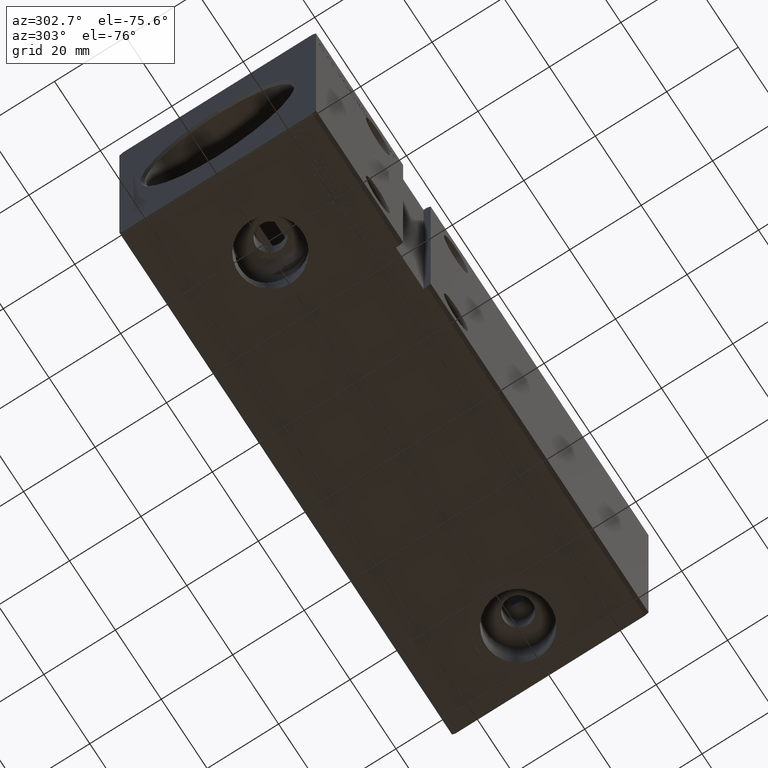
[diagram: clean part render]
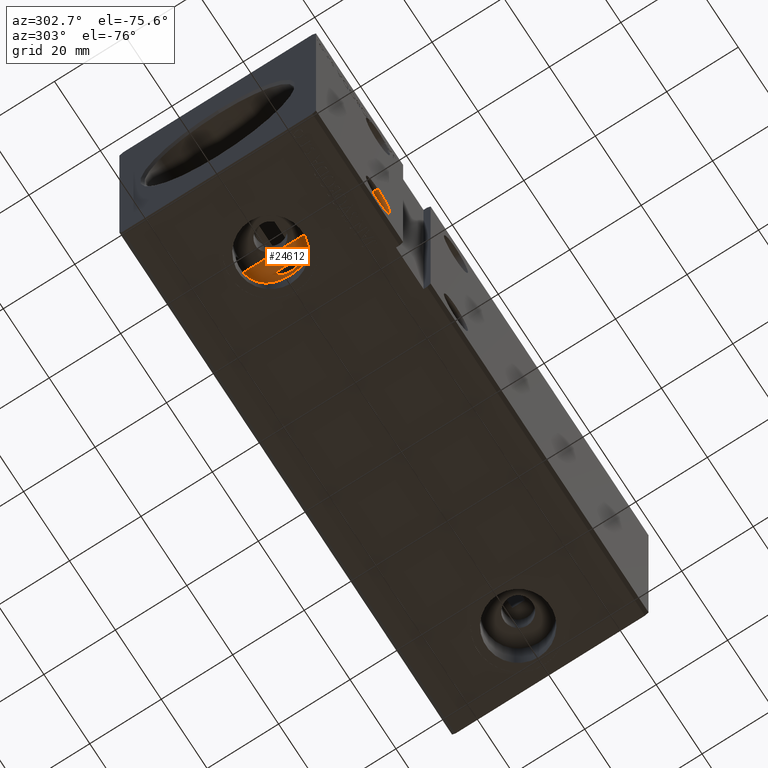
[diagram: same view with one face highlighted and labeled with its STEP entity id]
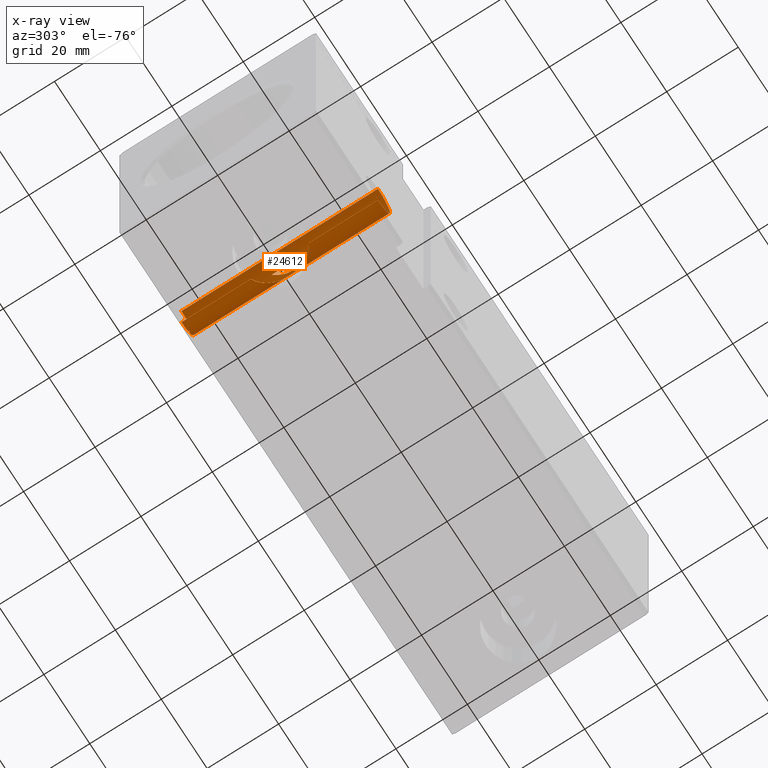
[diagram: x-ray of the same camera — body ghosted, the highlighted face saturated]
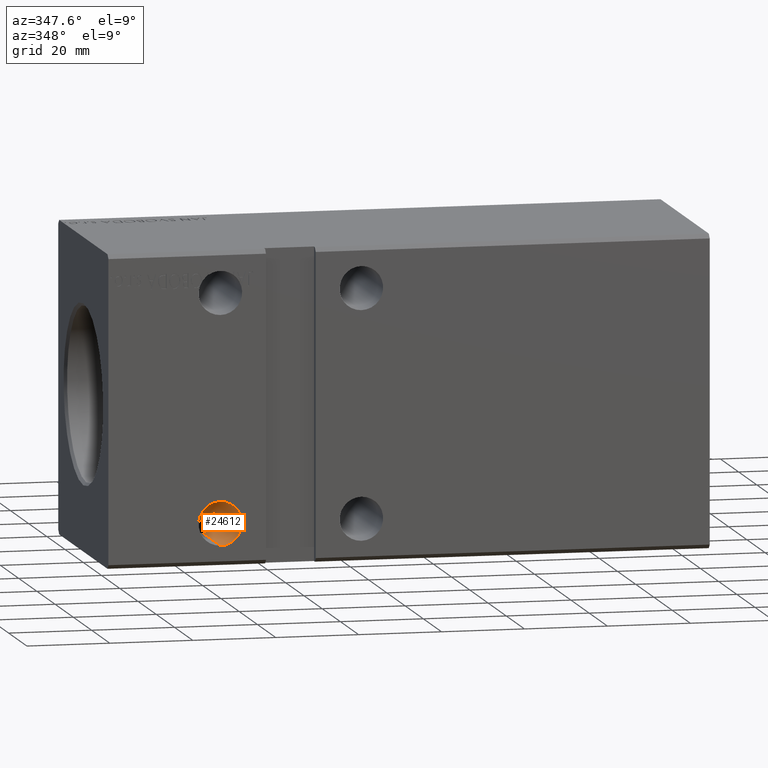
[diagram: same view with one face highlighted and labeled with its STEP entity id]
A machine part, auxiliary view. The second image highlights one B-rep face of the part: STEP entity #24612.
The next image is the same camera in x-ray: the body ghosted, the highlighted face saturated — about 0% of this face is hidden behind the body in this view.
A second angle (auxiliary view) of the same face is appended — the face is thin or edge-on in the first view.
In plain terms, the highlighted cylindrical surface (edge-blend (fillet) strip) has radius 5.25 mm, axis along (-0, -1, -0).
Its self-contained STEP definition (entity closure, byte-faithful):
#240 = AXIS2_PLACEMENT_3D ( 'NONE', #9125, #30287, #17522 ) ;
#247 = EDGE_CURVE ( 'NONE', #35630, #35188, #10014, .T. ) ;
#251 = EDGE_CURVE ( 'NONE', #6107, #32187, #13606, .T. ) ;
#565 = CARTESIAN_POINT ( 'NONE',  ( 30.01923076923075584, 27.30000000000000782, -31.79496746927497242 ) ) ;
#637 = DIRECTION ( 'NONE',  ( -0.000000000000000000, -1.000000000000000000, -5.507058653894626469E-17 ) ) ;
#680 = VECTOR ( 'NONE', #14255, 1000.000000000000000 ) ;
#697 = DIRECTION ( 'NONE',  ( 0.000000000000000000, 0.000000000000000000, 1.000000000000000000 ) ) ;
#782 = CARTESIAN_POINT ( 'NONE',  ( 30.01923076923075584, 27.50000000000003197, -31.79496746927497242 ) ) ;
#799 = VERTEX_POINT ( 'NONE', #565 ) ;
#971 = LINE ( 'NONE', #782, #20971 ) ;
#1026 = CARTESIAN_POINT ( 'NONE',  ( 31.74987164981405741, -2.116821594032598952, -29.73885290446572682 ) ) ;
#1120 = CARTESIAN_POINT ( 'NONE',  ( 30.92799628090085662, -4.278317451282456219, -24.00476713625127800 ) ) ;
#1124 = DIRECTION ( 'NONE',  ( 5.947623346206198682E-15, 0.000000000000000000, -1.000000000000000000 ) ) ;
#1228 = CARTESIAN_POINT ( 'NONE',  ( 28.33257449674679762, -7.253408603800984622, -32.58142202289079847 ) ) ;
#1319 = CARTESIAN_POINT ( 'NONE',  ( 31.87355452181064308, -1.517798595218639468, -25.54596872197477353 ) ) ;
#1452 = CARTESIAN_POINT ( 'NONE',  ( 27.00000000000000355, 27.50000000000003197, -22.25000000000000711 ) ) ;
#1554 = B_SPLINE_CURVE_WITH_KNOTS ( 'NONE', 3,
 ( #28233, #7099, #28436, #25632, #10083, #31436, #37812, #22842, #7699, #13274, #10485, #3918, #13870, #37412, #4524, #22637, #34826, #13672, #19655, #31840, #4116, #16672 ),
 .UNSPECIFIED., .F., .F.,
 ( 4, 2, 2, 2, 2, 2, 2, 2, 2, 2, 4 ),
 ( 0.01243331292495309000, 0.01377342179390552562, 0.01511353066285796125, 0.01578358509733417472, 0.01645363953181038993, 0.01779374840076281689, 0.01913385726971524731, 0.02047396613866767079, 0.02181407500762009427, 0.02248412944209630254, 0.02315418387657251428 ),
 .UNSPECIFIED. ) ;
#1886 = EDGE_CURVE ( 'NONE', #16867, #35630, #8544, .T. ) ;
#1905 = LINE ( 'NONE', #20236, #680 ) ;
#1909 = CARTESIAN_POINT ( 'NONE',  ( 30.28846153846152944, 27.50000000000003197, -31.59249565791574810 ) ) ;
#1987 = CARTESIAN_POINT ( 'NONE',  ( 31.64571472946482089, 27.50000000000003197, -29.94537004406973324 ) ) ;
#2154 = EDGE_CURVE ( 'NONE', #27629, #4449, #31618, .T. ) ;
#2451 = CARTESIAN_POINT ( 'NONE',  ( 32.00039999823637515, 0.2095946376151832102, -25.90046828368459941 ) ) ;
#2799 = LINE ( 'NONE', #14171, #22150 ) ;
#2964 = FACE_OUTER_BOUND ( 'NONE', #20361, .T. ) ;
#3678 = CARTESIAN_POINT ( 'NONE',  ( 27.00000000000000355, -27.50000000000000355, -32.75000000000000000 ) ) ;
#3823 = CARTESIAN_POINT ( 'NONE',  ( 27.00000000000000355, 27.50000000000003197, -32.75000000000000000 ) ) ;
#3918 = CARTESIAN_POINT ( 'NONE',  ( 30.90760833008661734, 4.315806309705124910, -31.01800618666971232 ) ) ;
#4048 = CARTESIAN_POINT ( 'NONE',  ( 31.64571472946482089, 27.50000000000003197, -29.94537004406973324 ) ) ;
#4116 = CARTESIAN_POINT ( 'NONE',  ( 31.99999999999999289, 0.2232511873690092297, -29.10078105935823700 ) ) ;
#4218 = CIRCLE ( 'NONE', #20148, 5.249999999999997335 ) ;
#4241 = CARTESIAN_POINT ( 'NONE',  ( 27.00000000000000355, 27.50000000000003197, -27.50000000000000355 ) ) ;
#4312 = CARTESIAN_POINT ( 'NONE',  ( 31.96489072438012968, -0.8974764669322575772, -25.78493506093466792 ) ) ;
#4353 = ORIENTED_EDGE ( 'NONE', *, *, #18526, .T. ) ;
#4427 = CARTESIAN_POINT ( 'NONE',  ( 29.78599849538879596, -5.973448801833280974, -32.00209708759411598 ) ) ;
#4449 = VERTEX_POINT ( 'NONE', #17845 ) ;
#4500 = CARTESIAN_POINT ( 'NONE',  ( 27.00000000000000355, -27.50000000000000355, -22.25000000000001066 ) ) ;
#4524 = CARTESIAN_POINT ( 'NONE',  ( 31.53670622947072388, 2.877837303814040126, -30.15267525249126379 ) ) ;
#4712 = CARTESIAN_POINT ( 'NONE',  ( 31.10472750638166772, -3.932202576330293464, -24.21633373910735543 ) ) ;
#4831 = ORIENTED_EDGE ( 'NONE', *, *, #1886, .F. ) ;
#4924 = EDGE_CURVE ( 'NONE', #39394, #12598, #31146, .T. ) ;
#4991 = EDGE_CURVE ( 'NONE', #32304, #39394, #14640, .T. ) ;
#5054 = CARTESIAN_POINT ( 'NONE',  ( 31.64571472946482089, 27.30000000000000782, -29.94537004406974035 ) ) ;
#5360 = ORIENTED_EDGE ( 'NONE', *, *, #13070, .F. ) ;
#5370 = CYLINDRICAL_SURFACE ( 'NONE', #240, 5.249999999999997335 ) ;
#5773 = DIRECTION ( 'NONE',  ( 0.000000000000000000, 0.000000000000000000, 1.000000000000000000 ) ) ;
#5827 = CIRCLE ( 'NONE', #22368, 5.249999999999997335 ) ;
#6019 = VECTOR ( 'NONE', #31368, 1000.000000000000000 ) ;
#6107 = VERTEX_POINT ( 'NONE', #1987 ) ;
#6743 = AXIS2_PLACEMENT_3D ( 'NONE', #4241, #34552, #10807 ) ;
#7099 = CARTESIAN_POINT ( 'NONE',  ( 27.40286168988945192, 7.862382377172155934, -32.75000000000000711 ) ) ;
#7106 = ORIENTED_EDGE ( 'NONE', *, *, #29937, .T. ) ;
#7206 = CARTESIAN_POINT ( 'NONE',  ( 30.91192576798002278, -4.308336981457539849, -31.01349467404923388 ) ) ;
#7293 = CARTESIAN_POINT ( 'NONE',  ( 31.93750247906445594, 1.079324552133368753, -25.71375318226922957 ) ) ;
#7311 = EDGE_CURVE ( 'NONE', #16867, #14042, #4218, .T. ) ;
#7694 = CARTESIAN_POINT ( 'NONE',  ( 31.70311647027032720, -2.300813308643572253, -25.16405310687168040 ) ) ;
#7699 = CARTESIAN_POINT ( 'NONE',  ( 29.88352700151274277, 5.801654747051010474, -31.89004079053835028 ) ) ;
#8378 = EDGE_CURVE ( 'NONE', #17520, #28210, #20043, .T. ) ;
#8544 = LINE ( 'NONE', #14728, #36048 ) ;
#8572 = CARTESIAN_POINT ( 'NONE',  ( 27.00000000000000355, 27.50000000000003197, -22.25000000000000711 ) ) ;
#8738 = DIRECTION ( 'NONE',  ( -0.000000000000000000, -1.000000000000000000, -5.507058653894626469E-17 ) ) ;
#8789 = ORIENTED_EDGE ( 'NONE', *, *, #37233, .T. ) ;
#8960 = AXIS2_PLACEMENT_3D ( 'NONE', #28318, #10170, #22320 ) ;
#9125 = CARTESIAN_POINT ( 'NONE',  ( 27.00000000000000355, 27.50000000000003197, -27.50000000000000355 ) ) ;
#9938 = CARTESIAN_POINT ( 'NONE',  ( 27.00000000000000711, -8.062257748298547355, -32.75000000000000000 ) ) ;
#9990 = CARTESIAN_POINT ( 'NONE',  ( 31.83639655614860331, -1.720256798175024082, -29.54524115184878852 ) ) ;
#10014 = LINE ( 'NONE', #1452, #6019 ) ;
#10083 = CARTESIAN_POINT ( 'NONE',  ( 28.85066787504610630, 6.851965380374288372, -32.42468671697207583 ) ) ;
#10170 = DIRECTION ( 'NONE',  ( -0.000000000000000000, 1.000000000000000000, 5.507058653894625853E-17 ) ) ;
#10193 = CARTESIAN_POINT ( 'NONE',  ( 31.09177392262524364, -3.959209887226275981, -30.80006806984447820 ) ) ;
#10286 = CARTESIAN_POINT ( 'NONE',  ( 31.84764770461744021, 1.701381292791838362, -25.47731726897154303 ) ) ;
#10485 = CARTESIAN_POINT ( 'NONE',  ( 30.49849917197173710, 4.992891323960996885, -31.42508266594752797 ) ) ;
#10529 = VECTOR ( 'NONE', #21171, 1000.000000000000000 ) ;
#10791 = CARTESIAN_POINT ( 'NONE',  ( 30.28846153846152944, 27.30000000000000782, -31.59249565791574810 ) ) ;
#10807 = DIRECTION ( 'NONE',  ( 0.000000000000000000, 0.000000000000000000, 1.000000000000000000 ) ) ;
#10906 = CARTESIAN_POINT ( 'NONE',  ( 30.01923076923075584, 27.50000000000003197, -31.79496746927497242 ) ) ;
#11559 = DIRECTION ( 'NONE',  ( -0.000000000000000000, 1.000000000000000000, 5.507058653894625853E-17 ) ) ;
#11618 = CARTESIAN_POINT ( 'NONE',  ( 31.83652987904732967, -1.719234942425159174, -25.45515744600379193 ) ) ;
#11808 = VECTOR ( 'NONE', #637, 1000.000000000000000 ) ;
#12004 = CARTESIAN_POINT ( 'NONE',  ( 30.72458051329272166, 27.50000000000003197, -23.79999999999998650 ) ) ;
#12356 = ORIENTED_EDGE ( 'NONE', *, *, #21702, .T. ) ;
#12598 = VERTEX_POINT ( 'NONE', #3678 ) ;
#12983 = CARTESIAN_POINT ( 'NONE',  ( 31.99137717627127131, -0.4510888903456313770, -29.12827605150356192 ) ) ;
#13070 = EDGE_CURVE ( 'NONE', #30395, #14042, #2799, .T. ) ;
#13183 = CARTESIAN_POINT ( 'NONE',  ( 31.40397459461826557, -3.244280992608217229, -30.37020397697443741 ) ) ;
#13213 = CARTESIAN_POINT ( 'NONE',  ( 30.72458051329272166, 4.618533955018443216, -23.79999999999998650 ) ) ;
#13274 = CARTESIAN_POINT ( 'NONE',  ( 30.26957916853698549, 5.321821666545355711, -31.61959907088585098 ) ) ;
#13391 = CARTESIAN_POINT ( 'NONE',  ( 32.01284735985530716, 27.50000000000003197, -29.06008376274855465 ) ) ;
#13474 = CARTESIAN_POINT ( 'NONE',  ( 30.72458051329272166, 4.618533955018443216, -23.79999999999998650 ) ) ;
#13606 = LINE ( 'NONE', #4048, #36565 ) ;
#13672 = CARTESIAN_POINT ( 'NONE',  ( 31.93511672898888420, 1.098857728786704513, -29.29286719930673755 ) ) ;
#13870 = CARTESIAN_POINT ( 'NONE',  ( 31.08772911232518865, 3.967733412523517966, -30.80523690190171493 ) ) ;
#14042 = VERTEX_POINT ( 'NONE', #13391 ) ;
#14171 = CARTESIAN_POINT ( 'NONE',  ( 32.01284735985530716, 27.50000000000003197, -29.06008376274855110 ) ) ;
#14255 = DIRECTION ( 'NONE',  ( -0.000000000000000000, -1.000000000000000000, -5.507058653894626469E-17 ) ) ;
#14588 = CARTESIAN_POINT ( 'NONE',  ( 27.00000000000000711, -2.694655668400267668E-15, -22.25000000000001066 ) ) ;
#14640 = B_SPLINE_CURVE_WITH_KNOTS ( 'NONE', 3,
 ( #28340, #22343, #12983, #25135, #37320, #18757, #9990, #1026, #19564, #22544, #13183, #10193, #7206, #19358, #4427, #31542, #28544, #34726, #1228, #31745, #16578, #28748, #22753, #19767 ),
 .UNSPECIFIED., .F., .F.,
 ( 4, 2, 2, 2, 2, 2, 2, 2, 2, 2, 2, 4 ),
 ( 0.02315418387657251428, 0.02382633822408273053, 0.02449849257159295024, 0.02517064691910316648, 0.02584280126661338273, 0.02718710996163380827, 0.02853141865665422688, 0.03122003604669507104, 0.03189219039420528035, 0.03256434474171548965, 0.03323649908922569896, 0.03390865343673590132 ),
 .UNSPECIFIED. ) ;
#14728 = CARTESIAN_POINT ( 'NONE',  ( 27.00000000000000355, 27.50000000000003197, -22.25000000000000711 ) ) ;
#14950 = DIRECTION ( 'NONE',  ( 0.000000000000000000, 1.000000000000000000, 5.507058653894626469E-17 ) ) ;
#15844 = VERTEX_POINT ( 'NONE', #30931 ) ;
#16578 = CARTESIAN_POINT ( 'NONE',  ( 27.78598026696628764, -7.625266879565527844, -32.69446019901156575 ) ) ;
#16672 = CARTESIAN_POINT ( 'NONE',  ( 32.00000000000000000, -4.386165393870320495E-16, -29.10078105935821924 ) ) ;
#16867 = VERTEX_POINT ( 'NONE', #8572 ) ;
#16896 = ORIENTED_EDGE ( 'NONE', *, *, #7311, .T. ) ;
#17062 = EDGE_CURVE ( 'NONE', #27629, #799, #971, .T. ) ;
#17373 = ORIENTED_EDGE ( 'NONE', *, *, #17062, .F. ) ;
#17520 = VERTEX_POINT ( 'NONE', #10791 ) ;
#17522 = DIRECTION ( 'NONE',  ( 0.000000000000000000, 0.000000000000000000, -1.000000000000000000 ) ) ;
#17721 = VERTEX_POINT ( 'NONE', #31989 ) ;
#17845 = CARTESIAN_POINT ( 'NONE',  ( 27.00000000000000355, 27.50000000000003197, -32.75000000000000000 ) ) ;
#18526 = EDGE_CURVE ( 'NONE', #30395, #32187, #26094, .T. ) ;
#18532 = EDGE_CURVE ( 'NONE', #17721, #32304, #1554, .T. ) ;
#18757 = CARTESIAN_POINT ( 'NONE',  ( 31.87379136139646008, -1.516507503265766887, -29.45344852638061894 ) ) ;
#19247 = CARTESIAN_POINT ( 'NONE',  ( 31.99915449359491149, -0.4687627991765094260, -25.89657810772876445 ) ) ;
#19358 = CARTESIAN_POINT ( 'NONE',  ( 30.29112101819411507, -5.336750126558960083, -31.63185849208695188 ) ) ;
#19564 = CARTESIAN_POINT ( 'NONE',  ( 31.70075946386602439, -2.309922572888617687, -29.84077241845538708 ) ) ;
#19655 = CARTESIAN_POINT ( 'NONE',  ( 31.95888172448310627, 0.8870590232669205433, -29.22470466943486045 ) ) ;
#19661 = ORIENTED_EDGE ( 'NONE', *, *, #4924, .T. ) ;
#19767 = CARTESIAN_POINT ( 'NONE',  ( 27.00000000000000711, -8.062257748298547355, -32.75000000000000000 ) ) ;
#20043 = LINE ( 'NONE', #1909, #31615 ) ;
#20148 = AXIS2_PLACEMENT_3D ( 'NONE', #33678, #11559, #5773 ) ;
#20236 = CARTESIAN_POINT ( 'NONE',  ( 27.00000000000000355, 27.50000000000003197, -32.75000000000000000 ) ) ;
#20361 = EDGE_LOOP ( 'NONE', ( #4831, #16896, #5360, #4353, #34376, #7106, #21587, #8789, #17373, #20946, #12356, #35788, #35207, #19661, #22419, #38976 ) ) ;
#20946 = ORIENTED_EDGE ( 'NONE', *, *, #2154, .T. ) ;
#20971 = VECTOR ( 'NONE', #30891, 1000.000000000000000 ) ;
#21171 = DIRECTION ( 'NONE',  ( 0.000000000000000000, 1.000000000000000000, 5.507058653894626469E-17 ) ) ;
#21587 = ORIENTED_EDGE ( 'NONE', *, *, #8378, .F. ) ;
#21702 = EDGE_CURVE ( 'NONE', #4449, #17721, #1905, .T. ) ;
#22150 = VECTOR ( 'NONE', #14950, 1000.000000000000000 ) ;
#22320 = DIRECTION ( 'NONE',  ( 0.000000000000000000, 0.000000000000000000, 1.000000000000000000 ) ) ;
#22343 = CARTESIAN_POINT ( 'NONE',  ( 32.00000000000000711, -0.2239508440746314222, -29.10078105935822634 ) ) ;
#22368 = AXIS2_PLACEMENT_3D ( 'NONE', #24426, #34002, #697 ) ;
#22419 = ORIENTED_EDGE ( 'NONE', *, *, #26703, .T. ) ;
#22544 = CARTESIAN_POINT ( 'NONE',  ( 31.53630955195871977, -2.878758308076166728, -30.15326513136522735 ) ) ;
#22637 = CARTESIAN_POINT ( 'NONE',  ( 31.75676340900862016, 2.115749369409254843, -29.73418693900369547 ) ) ;
#22708 = CIRCLE ( 'NONE', #31636, 5.249999999999997335 ) ;
#22753 = CARTESIAN_POINT ( 'NONE',  ( 27.20086754273493312, -7.962599538895704931, -32.75000000000000711 ) ) ;
#22842 = CARTESIAN_POINT ( 'NONE',  ( 29.74707520329563337, 5.959935596976650096, -31.97693234150666441 ) ) ;
#23435 = DIRECTION ( 'NONE',  ( 0.000000000000000000, 1.000000000000000000, 5.507058653894626469E-17 ) ) ;
#24142 = ORIENTED_EDGE ( 'NONE', *, *, #38096, .F. ) ;
#24426 = CARTESIAN_POINT ( 'NONE',  ( 27.00000000000000355, -27.50000000000000355, -27.50000000000000711 ) ) ;
#24612 = ADVANCED_FACE ( 'NONE', ( #2964, #35880 ), #5370, .F. ) ;
#25135 = CARTESIAN_POINT ( 'NONE',  ( 31.95862311356586360, -0.8896159969607533302, -29.22545235614087034 ) ) ;
#25468 = AXIS2_PLACEMENT_3D ( 'NONE', #29035, #28637, #1124 ) ;
#25632 = CARTESIAN_POINT ( 'NONE',  ( 28.51654916641922100, 7.124955880435832611, -32.54003349321605754 ) ) ;
#26094 = CIRCLE ( 'NONE', #25468, 5.249999999999997335 ) ;
#26703 = EDGE_CURVE ( 'NONE', #12598, #35188, #5827, .T. ) ;
#26769 = CARTESIAN_POINT ( 'NONE',  ( 31.54148969803202718, -2.862667714510353179, -24.85591584769998619 ) ) ;
#27629 = VERTEX_POINT ( 'NONE', #10906 ) ;
#28210 = VERTEX_POINT ( 'NONE', #38340 ) ;
#28233 = CARTESIAN_POINT ( 'NONE',  ( 27.00000000000000355, 8.062257748298543802, -32.75000000000000000 ) ) ;
#28318 = CARTESIAN_POINT ( 'NONE',  ( 27.00000000000000355, 27.50000000000003197, -27.50000000000000355 ) ) ;
#28340 = CARTESIAN_POINT ( 'NONE',  ( 32.00000000000000000, -4.386165393870320495E-16, -29.10078105935821924 ) ) ;
#28436 = CARTESIAN_POINT ( 'NONE',  ( 27.78813996626340455, 7.633546139714416867, -32.70391145010027856 ) ) ;
#28544 = CARTESIAN_POINT ( 'NONE',  ( 28.84333772886949632, -6.848536108910623810, -32.41895883497802799 ) ) ;
#28630 = CARTESIAN_POINT ( 'NONE',  ( 31.41148355668650538, -3.224247110503566827, -24.64166747146952119 ) ) ;
#28637 = DIRECTION ( 'NONE',  ( 0.000000000000000000, 1.000000000000000000, -0.000000000000000000 ) ) ;
#28748 = CARTESIAN_POINT ( 'NONE',  ( 27.40023000576612944, -7.854188563864829220, -32.73832012019695270 ) ) ;
#28761 = EDGE_LOOP ( 'NONE', ( #33184, #24142 ) ) ;
#28835 = CARTESIAN_POINT ( 'NONE',  ( 31.96101353132167233, 0.8646244857172020737, -25.78149435251750532 ) ) ;
#29035 = CARTESIAN_POINT ( 'NONE',  ( 27.00000000000000355, 27.30000000000000782, -27.50000000000000355 ) ) ;
#29784 = CARTESIAN_POINT ( 'NONE',  ( 32.00000000000000000, -4.386165393870320495E-16, -29.10078105935821924 ) ) ;
#29937 = EDGE_CURVE ( 'NONE', #6107, #28210, #35175, .T. ) ;
#30026 = B_SPLINE_CURVE_WITH_KNOTS ( 'NONE', 3,
 ( #37018, #1120, #4712, #28630, #26769, #7694, #31633, #11618, #1319, #4312, #19247, #2451, #38946, #28835, #7293, #10286, #38751, #34422, #35015, #38003, #37609, #13474 ),
 .UNSPECIFIED., .F., .F.,
 ( 4, 2, 2, 2, 2, 2, 2, 2, 2, 2, 4 ),
 ( 8.673617379884034509E-19, 0.001319342115462082210, 0.002638684230924162686, 0.003298355288655201081, 0.003958026346386239042, 0.005277368461848311494, 0.005937039519579348154, 0.006596710577310384814, 0.007916052692772453797, 0.009235394808234523648, 0.01055473692369658829 ),
 .UNSPECIFIED. ) ;
#30287 = DIRECTION ( 'NONE',  ( -0.000000000000000000, -1.000000000000000000, -5.507058653894626469E-17 ) ) ;
#30395 = VERTEX_POINT ( 'NONE', #31379 ) ;
#30891 = DIRECTION ( 'NONE',  ( -0.000000000000000000, -1.000000000000000000, -5.507058653894626469E-17 ) ) ;
#30931 = CARTESIAN_POINT ( 'NONE',  ( 30.72458051329272166, -4.618533955018450321, -23.79999999999998650 ) ) ;
#31146 = LINE ( 'NONE', #3823, #11808 ) ;
#31227 = EDGE_CURVE ( 'NONE', #15844, #36556, #30026, .T. ) ;
#31368 = DIRECTION ( 'NONE',  ( -0.000000000000000000, -1.000000000000000000, -5.507058653894626469E-17 ) ) ;
#31379 = CARTESIAN_POINT ( 'NONE',  ( 32.01284735985530716, 27.30000000000000782, -29.06008376274855465 ) ) ;
#31436 = CARTESIAN_POINT ( 'NONE',  ( 29.31432714895698410, 6.416713231509637794, -32.21541541739568260 ) ) ;
#31542 = CARTESIAN_POINT ( 'NONE',  ( 29.00664260174633924, -6.705668221017011099, -32.35439448659754191 ) ) ;
#31615 = VECTOR ( 'NONE', #23435, 1000.000000000000000 ) ;
#31618 = CIRCLE ( 'NONE', #6743, 5.249999999999997335 ) ;
#31633 = CARTESIAN_POINT ( 'NONE',  ( 31.75139994291974332, -2.110219924466714581, -25.26446853657266089 ) ) ;
#31636 = AXIS2_PLACEMENT_3D ( 'NONE', #33735, #33149, #33930 ) ;
#31745 = CARTESIAN_POINT ( 'NONE',  ( 27.97223402313407448, -7.505010057037670990, -32.66249605988811311 ) ) ;
#31840 = CARTESIAN_POINT ( 'NONE',  ( 31.99153115492232757, 0.4481104262319644538, -29.12779939907309412 ) ) ;
#31989 = CARTESIAN_POINT ( 'NONE',  ( 27.00000000000000355, 8.062257748298543802, -32.75000000000000000 ) ) ;
#32187 = VERTEX_POINT ( 'NONE', #5054 ) ;
#32304 = VERTEX_POINT ( 'NONE', #29784 ) ;
#33149 = DIRECTION ( 'NONE',  ( -0.000000000000000000, 1.000000000000000000, -0.000000000000000000 ) ) ;
#33184 = ORIENTED_EDGE ( 'NONE', *, *, #31227, .T. ) ;
#33678 = CARTESIAN_POINT ( 'NONE',  ( 27.00000000000000355, 27.50000000000003197, -27.50000000000000355 ) ) ;
#33735 = CARTESIAN_POINT ( 'NONE',  ( 27.00000000000000355, 27.30000000000000782, -27.50000000000000355 ) ) ;
#33930 = DIRECTION ( 'NONE',  ( 5.881538642359463369E-14, 0.000000000000000000, -1.000000000000000000 ) ) ;
#34002 = DIRECTION ( 'NONE',  ( 0.000000000000000000, -1.000000000000000000, -4.752667057470705491E-17 ) ) ;
#34376 = ORIENTED_EDGE ( 'NONE', *, *, #251, .F. ) ;
#34422 = CARTESIAN_POINT ( 'NONE',  ( 31.54780525048665041, 2.844132978693071134, -24.86672757087727348 ) ) ;
#34552 = DIRECTION ( 'NONE',  ( -0.000000000000000000, 1.000000000000000000, 5.507058653894625853E-17 ) ) ;
#34726 = CARTESIAN_POINT ( 'NONE',  ( 28.50665690231762284, -7.122062370468261072, -32.53229917449078101 ) ) ;
#34826 = CARTESIAN_POINT ( 'NONE',  ( 31.84401416624882941, 1.720061191433443604, -29.53150841730092679 ) ) ;
#34956 = DIRECTION ( 'NONE',  ( -0.000000000000000000, -1.000000000000000000, -5.507058653894626469E-17 ) ) ;
#35015 = CARTESIAN_POINT ( 'NONE',  ( 31.41675067279635414, 3.211103773942988404, -24.64950158926016854 ) ) ;
#35175 = CIRCLE ( 'NONE', #8960, 5.249999999999997335 ) ;
#35188 = VERTEX_POINT ( 'NONE', #4500 ) ;
#35207 = ORIENTED_EDGE ( 'NONE', *, *, #4991, .T. ) ;
#35630 = VERTEX_POINT ( 'NONE', #14588 ) ;
#35788 = ORIENTED_EDGE ( 'NONE', *, *, #18532, .T. ) ;
#35880 = FACE_BOUND ( 'NONE', #28761, .T. ) ;
#36048 = VECTOR ( 'NONE', #8738, 1000.000000000000000 ) ;
#36556 = VERTEX_POINT ( 'NONE', #13213 ) ;
#36565 = VECTOR ( 'NONE', #34956, 1000.000000000000000 ) ;
#36927 = LINE ( 'NONE', #12004, #10529 ) ;
#37018 = CARTESIAN_POINT ( 'NONE',  ( 30.72458051329272166, -4.618533955018450321, -23.79999999999998650 ) ) ;
#37233 = EDGE_CURVE ( 'NONE', #17520, #799, #22708, .T. ) ;
#37320 = CARTESIAN_POINT ( 'NONE',  ( 31.93478903376353273, -1.101595685900513377, -29.29378386989304772 ) ) ;
#37412 = CARTESIAN_POINT ( 'NONE',  ( 31.40263719426893729, 3.248070012899391568, -30.37243903487673435 ) ) ;
#37609 = CARTESIAN_POINT ( 'NONE',  ( 30.92835943947691391, 4.277710062079061792, -24.00513270742846572 ) ) ;
#37812 = CARTESIAN_POINT ( 'NONE',  ( 29.46256285563946165, 6.267307033802101301, -32.13951824492747278 ) ) ;
#38003 = CARTESIAN_POINT ( 'NONE',  ( 31.10655687563568961, 3.928945781902891010, -24.21835127985237079 ) ) ;
#38096 = EDGE_CURVE ( 'NONE', #15844, #36556, #36927, .T. ) ;
#38340 = CARTESIAN_POINT ( 'NONE',  ( 30.28846153846152944, 27.50000000000003197, -31.59249565791574810 ) ) ;
#38751 = CARTESIAN_POINT ( 'NONE',  ( 31.76295936179200652, 2.089164958618269452, -25.27944277257943639 ) ) ;
#38946 = CARTESIAN_POINT ( 'NONE',  ( 31.99232567236699154, 0.4306019181580990063, -25.87469962794213885 ) ) ;
#38976 = ORIENTED_EDGE ( 'NONE', *, *, #247, .F. ) ;
#39394 = VERTEX_POINT ( 'NONE', #9938 ) ;